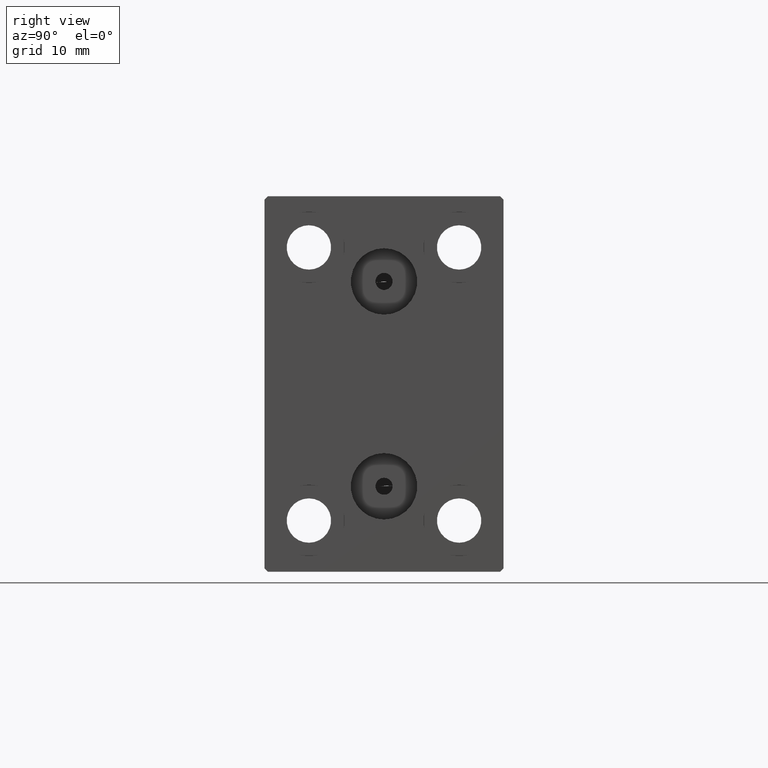
[diagram: clean part render]
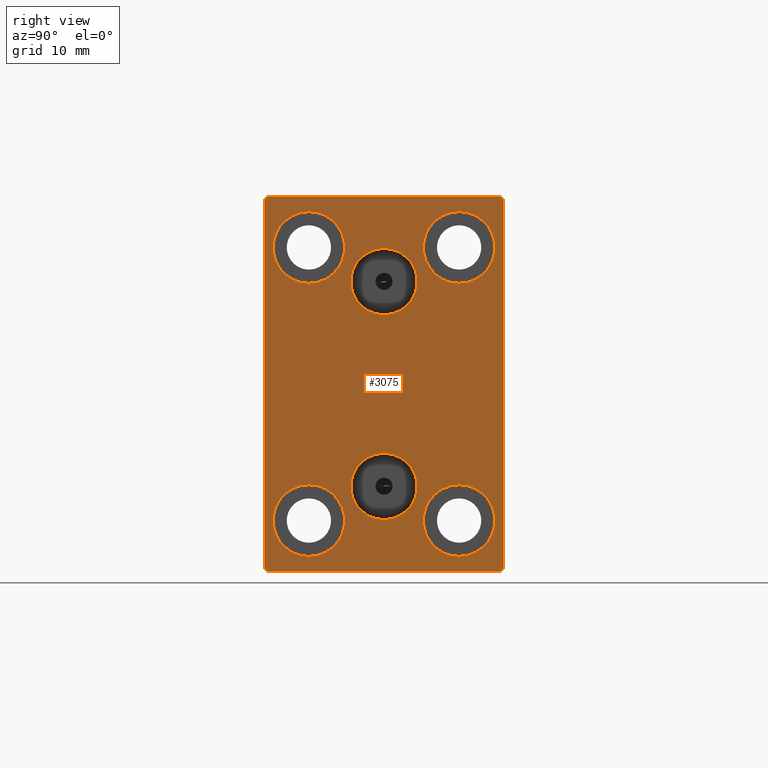
[diagram: same view with one face highlighted and labeled with its STEP entity id]
A machine part, right view. The second image highlights one B-rep face of the part: STEP entity #3075.
In plain terms, the highlighted planar face has unit normal (1, 0, 0).
Its self-contained STEP definition (entity closure, byte-faithful):
#58 = CIRCLE ( 'NONE', #10015, 5.250000000000000888 ) ;
#426 = ORIENTED_EDGE ( 'NONE', *, *, #41455, .T. ) ;
#455 = CARTESIAN_POINT ( 'NONE',  ( 76.00000000000000000, -17.50000000000000000, 26.99999999999998224 ) ) ;
#1135 = DIRECTION ( 'NONE',  ( 0.000000000000000000, 0.000000000000000000, -1.000000000000000000 ) ) ;
#1283 = CARTESIAN_POINT ( 'NONE',  ( 76.00000000000000000, -1.734723475976807094E-15, -15.00000000000000000 ) ) ;
#1355 = VERTEX_POINT ( 'NONE', #32991 ) ;
#1367 = FACE_BOUND ( 'NONE', #2166, .T. ) ;
#1516 = CIRCLE ( 'NONE', #10048, 4.859999999999999432 ) ;
#1784 = DIRECTION ( 'NONE',  ( 0.000000000000000000, 0.000000000000000000, 1.000000000000000000 ) ) ;
#1907 = CARTESIAN_POINT ( 'NONE',  ( 76.00000000000000000, 11.00000000000000355, -25.25000000000000000 ) ) ;
#2166 = EDGE_LOOP ( 'NONE', ( #4683, #4863 ) ) ;
#2817 = AXIS2_PLACEMENT_3D ( 'NONE', #27584, #10710, #24264 ) ;
#3070 = CARTESIAN_POINT ( 'NONE',  ( 76.00000000000000000, -1.241791854335416311E-15, 19.85999999999999943 ) ) ;
#3075 = ADVANCED_FACE ( 'NONE', ( #25574, #32227, #28464, #1367, #31782, #28240, #8037 ), #4484, .T. ) ;
#3105 = ORIENTED_EDGE ( 'NONE', *, *, #12340, .F. ) ;
#3430 = ORIENTED_EDGE ( 'NONE', *, *, #29156, .F. ) ;
#3514 = CIRCLE ( 'NONE', #2817, 4.859999999999999432 ) ;
#3688 = ORIENTED_EDGE ( 'NONE', *, *, #38907, .T. ) ;
#3815 = CARTESIAN_POINT ( 'NONE',  ( 76.00000000000000000, -11.00000000000000355, -14.75000000000000000 ) ) ;
#3904 = EDGE_CURVE ( 'NONE', #15122, #24027, #40523, .T. ) ;
#4143 = CARTESIAN_POINT ( 'NONE',  ( 76.00000000000000000, 11.00000000000000355, -20.00000000000000000 ) ) ;
#4484 = PLANE ( 'NONE',  #10270 ) ;
#4683 = ORIENTED_EDGE ( 'NONE', *, *, #30097, .T. ) ;
#4711 = AXIS2_PLACEMENT_3D ( 'NONE', #16261, #20257, #20470 ) ;
#4863 = ORIENTED_EDGE ( 'NONE', *, *, #26245, .T. ) ;
#5094 = CARTESIAN_POINT ( 'NONE',  ( 76.00000000000000000, 17.00000000000000000, 27.50000000000000355 ) ) ;
#5213 = DIRECTION ( 'NONE',  ( -0.000000000000000000, -0.7071067811865474617, 0.7071067811865474617 ) ) ;
#5245 = ORIENTED_EDGE ( 'NONE', *, *, #22982, .T. ) ;
#5403 = CARTESIAN_POINT ( 'NONE',  ( 76.00000000000000000, -11.00000000000000355, 25.25000000000000000 ) ) ;
#5465 = EDGE_CURVE ( 'NONE', #12071, #38193, #13412, .T. ) ;
#5783 = AXIS2_PLACEMENT_3D ( 'NONE', #39819, #36702, #29412 ) ;
#5933 = DIRECTION ( 'NONE',  ( -0.000000000000000000, 0.7071067811865474617, 0.7071067811865474617 ) ) ;
#6040 = CARTESIAN_POINT ( 'NONE',  ( 76.00000000000000000, -1.836970198721029589E-15, 15.00000000000000000 ) ) ;
#6048 = AXIS2_PLACEMENT_3D ( 'NONE', #36340, #40334, #30354 ) ;
#6253 = EDGE_CURVE ( 'NONE', #10909, #34806, #3514, .T. ) ;
#6370 = AXIS2_PLACEMENT_3D ( 'NONE', #6040, #22262, #12275 ) ;
#6620 = LINE ( 'NONE', #26622, #18169 ) ;
#6798 = EDGE_CURVE ( 'NONE', #34677, #32103, #34077, .T. ) ;
#7022 = EDGE_CURVE ( 'NONE', #34806, #10909, #36110, .T. ) ;
#7023 = ORIENTED_EDGE ( 'NONE', *, *, #34788, .T. ) ;
#7222 = CARTESIAN_POINT ( 'NONE',  ( 76.00000000000000000, -17.50000000000000000, -27.50000000000000355 ) ) ;
#7337 = ORIENTED_EDGE ( 'NONE', *, *, #6798, .T. ) ;
#8037 = FACE_OUTER_BOUND ( 'NONE', #29263, .T. ) ;
#8085 = DIRECTION ( 'NONE',  ( 0.000000000000000000, 0.000000000000000000, 1.000000000000000000 ) ) ;
#8182 = DIRECTION ( 'NONE',  ( 1.000000000000000000, 0.000000000000000000, -0.000000000000000000 ) ) ;
#8838 = ORIENTED_EDGE ( 'NONE', *, *, #11452, .T. ) ;
#9525 = DIRECTION ( 'NONE',  ( -0.000000000000000000, 0.7071067811865378028, -0.7071067811865573427 ) ) ;
#9668 = CARTESIAN_POINT ( 'NONE',  ( 76.00000000000000000, 11.00000000000000355, -14.75000000000000000 ) ) ;
#9993 = ORIENTED_EDGE ( 'NONE', *, *, #15230, .T. ) ;
#9999 = DIRECTION ( 'NONE',  ( -1.000000000000000000, -0.000000000000000000, -0.000000000000000000 ) ) ;
#10015 = AXIS2_PLACEMENT_3D ( 'NONE', #39077, #35746, #32428 ) ;
#10046 = VECTOR ( 'NONE', #1135, 1000.000000000000000 ) ;
#10048 = AXIS2_PLACEMENT_3D ( 'NONE', #24955, #20951, #8085 ) ;
#10270 = AXIS2_PLACEMENT_3D ( 'NONE', #14467, #28691, #35317 ) ;
#10710 = DIRECTION ( 'NONE',  ( 1.000000000000000000, 0.000000000000000000, 0.000000000000000000 ) ) ;
#10909 = VERTEX_POINT ( 'NONE', #27506 ) ;
#11072 = VECTOR ( 'NONE', #25203, 1000.000000000000000 ) ;
#11311 = CARTESIAN_POINT ( 'NONE',  ( 76.00000000000000000, 17.50000000000000711, -27.50000000000000355 ) ) ;
#11452 = EDGE_CURVE ( 'NONE', #25097, #16726, #58, .T. ) ;
#11471 = VERTEX_POINT ( 'NONE', #38858 ) ;
#11839 = ORIENTED_EDGE ( 'NONE', *, *, #14279, .T. ) ;
#11884 = CIRCLE ( 'NONE', #17523, 5.250000000000000888 ) ;
#12071 = VERTEX_POINT ( 'NONE', #1907 ) ;
#12275 = DIRECTION ( 'NONE',  ( 0.000000000000000000, 0.000000000000000000, -1.000000000000000000 ) ) ;
#12340 = EDGE_CURVE ( 'NONE', #11471, #38570, #1516, .T. ) ;
#12744 = DIRECTION ( 'NONE',  ( -1.000000000000000000, -0.000000000000000000, -0.000000000000000000 ) ) ;
#13368 = ORIENTED_EDGE ( 'NONE', *, *, #5465, .T. ) ;
#13412 = CIRCLE ( 'NONE', #17662, 5.250000000000000888 ) ;
#13778 = AXIS2_PLACEMENT_3D ( 'NONE', #23395, #12744, #42930 ) ;
#14100 = DIRECTION ( 'NONE',  ( 0.000000000000000000, -0.7071067811865474617, -0.7071067811865474617 ) ) ;
#14279 = EDGE_CURVE ( 'NONE', #43495, #34677, #24161, .T. ) ;
#14467 = CARTESIAN_POINT ( 'NONE',  ( 76.00000000000000000, 0.000000000000000000, 0.000000000000000000 ) ) ;
#15122 = VERTEX_POINT ( 'NONE', #37682 ) ;
#15230 = EDGE_CURVE ( 'NONE', #24027, #22227, #42777, .T. ) ;
#16138 = CARTESIAN_POINT ( 'NONE',  ( 76.00000000000000000, 22.25000000000000711, -22.25000000000000711 ) ) ;
#16261 = CARTESIAN_POINT ( 'NONE',  ( 76.00000000000000000, -11.00000000000000355, 20.00000000000000000 ) ) ;
#16471 = VECTOR ( 'NONE', #31236, 1000.000000000000000 ) ;
#16726 = VERTEX_POINT ( 'NONE', #37962 ) ;
#16784 = EDGE_LOOP ( 'NONE', ( #3105, #3430 ) ) ;
#17212 = CARTESIAN_POINT ( 'NONE',  ( 76.00000000000000000, -22.24999999999998579, 22.24999999999998579 ) ) ;
#17523 = AXIS2_PLACEMENT_3D ( 'NONE', #4143, #9999, #24360 ) ;
#17662 = AXIS2_PLACEMENT_3D ( 'NONE', #28430, #41948, #1784 ) ;
#17774 = CARTESIAN_POINT ( 'NONE',  ( 76.00000000000000000, -17.50000000000000000, 27.49999999999999645 ) ) ;
#17912 = CARTESIAN_POINT ( 'NONE',  ( 76.00000000000000000, -11.00000000000000355, -20.00000000000000000 ) ) ;
#18165 = EDGE_CURVE ( 'NONE', #32103, #42685, #20680, .T. ) ;
#18169 = VECTOR ( 'NONE', #9525, 1000.000000000000000 ) ;
#19091 = CARTESIAN_POINT ( 'NONE',  ( 76.00000000000000000, 17.00000000000000711, -27.50000000000000355 ) ) ;
#19257 = CIRCLE ( 'NONE', #5783, 5.250000000000000888 ) ;
#19831 = VECTOR ( 'NONE', #14100, 1000.000000000000114 ) ;
#20257 = DIRECTION ( 'NONE',  ( -1.000000000000000000, -0.000000000000000000, -0.000000000000000000 ) ) ;
#20265 = AXIS2_PLACEMENT_3D ( 'NONE', #17912, #34555, #37666 ) ;
#20449 = ORIENTED_EDGE ( 'NONE', *, *, #32617, .T. ) ;
#20470 = DIRECTION ( 'NONE',  ( 0.000000000000000000, 0.000000000000000000, 1.000000000000000000 ) ) ;
#20680 = LINE ( 'NONE', #17774, #10046 ) ;
#20741 = VECTOR ( 'NONE', #5213, 1000.000000000000114 ) ;
#20789 = EDGE_CURVE ( 'NONE', #1355, #43495, #35826, .T. ) ;
#20951 = DIRECTION ( 'NONE',  ( 1.000000000000000000, 0.000000000000000000, -0.000000000000000000 ) ) ;
#21081 = DIRECTION ( 'NONE',  ( 0.000000000000000000, -1.261617073437677752E-16, 1.000000000000000000 ) ) ;
#21239 = EDGE_LOOP ( 'NONE', ( #13368, #3688 ) ) ;
#21484 = DIRECTION ( 'NONE',  ( 0.000000000000000000, 0.000000000000000000, 1.000000000000000000 ) ) ;
#21697 = ORIENTED_EDGE ( 'NONE', *, *, #3904, .T. ) ;
#22227 = VERTEX_POINT ( 'NONE', #38367 ) ;
#22262 = DIRECTION ( 'NONE',  ( 1.000000000000000000, 0.000000000000000000, 0.000000000000000000 ) ) ;
#22982 = EDGE_CURVE ( 'NONE', #22227, #1355, #24645, .T. ) ;
#23395 = CARTESIAN_POINT ( 'NONE',  ( 76.00000000000000000, -11.00000000000000355, -20.00000000000000000 ) ) ;
#23612 = EDGE_CURVE ( 'NONE', #36675, #30127, #32191, .T. ) ;
#23732 = CARTESIAN_POINT ( 'NONE',  ( 76.00000000000000000, 17.50000000000000000, 27.50000000000000355 ) ) ;
#23935 = CARTESIAN_POINT ( 'NONE',  ( 76.00000000000000000, -11.00000000000000355, 14.75000000000000000 ) ) ;
#24027 = VERTEX_POINT ( 'NONE', #19091 ) ;
#24161 = LINE ( 'NONE', #23732, #16471 ) ;
#24264 = DIRECTION ( 'NONE',  ( 0.000000000000000000, 0.000000000000000000, -1.000000000000000000 ) ) ;
#24360 = DIRECTION ( 'NONE',  ( 0.000000000000000000, 0.000000000000000000, 1.000000000000000000 ) ) ;
#24560 = EDGE_LOOP ( 'NONE', ( #8838, #426 ) ) ;
#24617 = VERTEX_POINT ( 'NONE', #5403 ) ;
#24645 = LINE ( 'NONE', #11311, #32850 ) ;
#24955 = CARTESIAN_POINT ( 'NONE',  ( 76.00000000000000000, -1.734723475976807094E-15, -15.00000000000000000 ) ) ;
#25097 = VERTEX_POINT ( 'NONE', #31049 ) ;
#25203 = DIRECTION ( 'NONE',  ( 0.000000000000000000, 1.000000000000000000, 0.000000000000000000 ) ) ;
#25256 = CIRCLE ( 'NONE', #39404, 4.859999999999999432 ) ;
#25574 = FACE_BOUND ( 'NONE', #31273, .T. ) ;
#25858 = CARTESIAN_POINT ( 'NONE',  ( 76.00000000000000000, 22.25000000000000355, 22.25000000000000355 ) ) ;
#26245 = EDGE_CURVE ( 'NONE', #24617, #43718, #27998, .T. ) ;
#26622 = CARTESIAN_POINT ( 'NONE',  ( 76.00000000000000000, -22.25000000000024869, -22.24999999999963407 ) ) ;
#27506 = CARTESIAN_POINT ( 'NONE',  ( 76.00000000000000000, -1.836970198721029589E-15, 10.14000000000000057 ) ) ;
#27584 = CARTESIAN_POINT ( 'NONE',  ( 76.00000000000000000, -1.836970198721029589E-15, 15.00000000000000000 ) ) ;
#27998 = CIRCLE ( 'NONE', #6048, 5.250000000000000888 ) ;
#28240 = FACE_BOUND ( 'NONE', #29761, .T. ) ;
#28396 = ORIENTED_EDGE ( 'NONE', *, *, #23612, .T. ) ;
#28430 = CARTESIAN_POINT ( 'NONE',  ( 76.00000000000000000, 11.00000000000000355, -20.00000000000000000 ) ) ;
#28464 = FACE_BOUND ( 'NONE', #21239, .T. ) ;
#28691 = DIRECTION ( 'NONE',  ( 1.000000000000000000, 0.000000000000000000, 0.000000000000000000 ) ) ;
#29156 = EDGE_CURVE ( 'NONE', #38570, #11471, #25256, .T. ) ;
#29263 = EDGE_LOOP ( 'NONE', ( #11839, #7337, #42366, #7023, #21697, #9993, #5245, #39452 ) ) ;
#29264 = VECTOR ( 'NONE', #5933, 1000.000000000000114 ) ;
#29412 = DIRECTION ( 'NONE',  ( 0.000000000000000000, 0.000000000000000000, 1.000000000000000000 ) ) ;
#29761 = EDGE_LOOP ( 'NONE', ( #28396, #20449 ) ) ;
#29795 = ORIENTED_EDGE ( 'NONE', *, *, #7022, .F. ) ;
#30097 = EDGE_CURVE ( 'NONE', #43718, #24617, #41541, .T. ) ;
#30127 = VERTEX_POINT ( 'NONE', #3815 ) ;
#30354 = DIRECTION ( 'NONE',  ( 0.000000000000000000, 0.000000000000000000, 1.000000000000000000 ) ) ;
#31049 = CARTESIAN_POINT ( 'NONE',  ( 76.00000000000000000, 11.00000000000000355, 14.75000000000000000 ) ) ;
#31236 = DIRECTION ( 'NONE',  ( 0.000000000000000000, -1.000000000000000000, -1.982541115402065110E-16 ) ) ;
#31273 = EDGE_LOOP ( 'NONE', ( #39553, #29795 ) ) ;
#31782 = FACE_BOUND ( 'NONE', #24560, .T. ) ;
#32103 = VERTEX_POINT ( 'NONE', #455 ) ;
#32191 = CIRCLE ( 'NONE', #13778, 5.250000000000000888 ) ;
#32227 = FACE_BOUND ( 'NONE', #16784, .T. ) ;
#32316 = CIRCLE ( 'NONE', #20265, 5.250000000000000888 ) ;
#32428 = DIRECTION ( 'NONE',  ( 0.000000000000000000, 0.000000000000000000, 1.000000000000000000 ) ) ;
#32615 = CARTESIAN_POINT ( 'NONE',  ( 76.00000000000000000, -11.00000000000000355, -25.25000000000000000 ) ) ;
#32617 = EDGE_CURVE ( 'NONE', #30127, #36675, #32316, .T. ) ;
#32688 = CARTESIAN_POINT ( 'NONE',  ( 76.00000000000000000, -16.99999999999998579, 27.49999999999999645 ) ) ;
#32850 = VECTOR ( 'NONE', #21081, 1000.000000000000000 ) ;
#32991 = CARTESIAN_POINT ( 'NONE',  ( 76.00000000000000000, 17.50000000000000000, 27.00000000000000355 ) ) ;
#34077 = LINE ( 'NONE', #17212, #19831 ) ;
#34555 = DIRECTION ( 'NONE',  ( -1.000000000000000000, -0.000000000000000000, -0.000000000000000000 ) ) ;
#34677 = VERTEX_POINT ( 'NONE', #32688 ) ;
#34788 = EDGE_CURVE ( 'NONE', #42685, #15122, #6620, .T. ) ;
#34806 = VERTEX_POINT ( 'NONE', #3070 ) ;
#35317 = DIRECTION ( 'NONE',  ( 0.000000000000000000, 0.000000000000000000, -1.000000000000000000 ) ) ;
#35746 = DIRECTION ( 'NONE',  ( -1.000000000000000000, -0.000000000000000000, -0.000000000000000000 ) ) ;
#35826 = LINE ( 'NONE', #25858, #20741 ) ;
#36110 = CIRCLE ( 'NONE', #6370, 4.859999999999999432 ) ;
#36340 = CARTESIAN_POINT ( 'NONE',  ( 76.00000000000000000, -11.00000000000000355, 20.00000000000000000 ) ) ;
#36675 = VERTEX_POINT ( 'NONE', #32615 ) ;
#36702 = DIRECTION ( 'NONE',  ( -1.000000000000000000, -0.000000000000000000, -0.000000000000000000 ) ) ;
#37126 = CARTESIAN_POINT ( 'NONE',  ( 76.00000000000000000, -1.139545131591193817E-15, -10.14000000000000057 ) ) ;
#37666 = DIRECTION ( 'NONE',  ( 0.000000000000000000, 0.000000000000000000, 1.000000000000000000 ) ) ;
#37682 = CARTESIAN_POINT ( 'NONE',  ( 76.00000000000000000, -17.00000000000001421, -27.50000000000000355 ) ) ;
#37962 = CARTESIAN_POINT ( 'NONE',  ( 76.00000000000000000, 11.00000000000000355, 25.25000000000000000 ) ) ;
#38193 = VERTEX_POINT ( 'NONE', #9668 ) ;
#38367 = CARTESIAN_POINT ( 'NONE',  ( 76.00000000000000000, 17.50000000000000711, -27.00000000000000355 ) ) ;
#38570 = VERTEX_POINT ( 'NONE', #37126 ) ;
#38858 = CARTESIAN_POINT ( 'NONE',  ( 76.00000000000000000, -1.734723475976807094E-15, -19.85999999999999943 ) ) ;
#38907 = EDGE_CURVE ( 'NONE', #38193, #12071, #11884, .T. ) ;
#39077 = CARTESIAN_POINT ( 'NONE',  ( 76.00000000000000000, 11.00000000000000355, 20.00000000000000000 ) ) ;
#39124 = CARTESIAN_POINT ( 'NONE',  ( 76.00000000000000000, -17.50000000000000000, -27.00000000000000355 ) ) ;
#39404 = AXIS2_PLACEMENT_3D ( 'NONE', #1283, #8182, #21484 ) ;
#39452 = ORIENTED_EDGE ( 'NONE', *, *, #20789, .T. ) ;
#39553 = ORIENTED_EDGE ( 'NONE', *, *, #6253, .F. ) ;
#39819 = CARTESIAN_POINT ( 'NONE',  ( 76.00000000000000000, 11.00000000000000355, 20.00000000000000000 ) ) ;
#40334 = DIRECTION ( 'NONE',  ( -1.000000000000000000, -0.000000000000000000, -0.000000000000000000 ) ) ;
#40523 = LINE ( 'NONE', #7222, #11072 ) ;
#41455 = EDGE_CURVE ( 'NONE', #16726, #25097, #19257, .T. ) ;
#41541 = CIRCLE ( 'NONE', #4711, 5.250000000000000888 ) ;
#41948 = DIRECTION ( 'NONE',  ( -1.000000000000000000, -0.000000000000000000, -0.000000000000000000 ) ) ;
#42366 = ORIENTED_EDGE ( 'NONE', *, *, #18165, .T. ) ;
#42685 = VERTEX_POINT ( 'NONE', #39124 ) ;
#42777 = LINE ( 'NONE', #16138, #29264 ) ;
#42930 = DIRECTION ( 'NONE',  ( 0.000000000000000000, 0.000000000000000000, 1.000000000000000000 ) ) ;
#43495 = VERTEX_POINT ( 'NONE', #5094 ) ;
#43718 = VERTEX_POINT ( 'NONE', #23935 ) ;